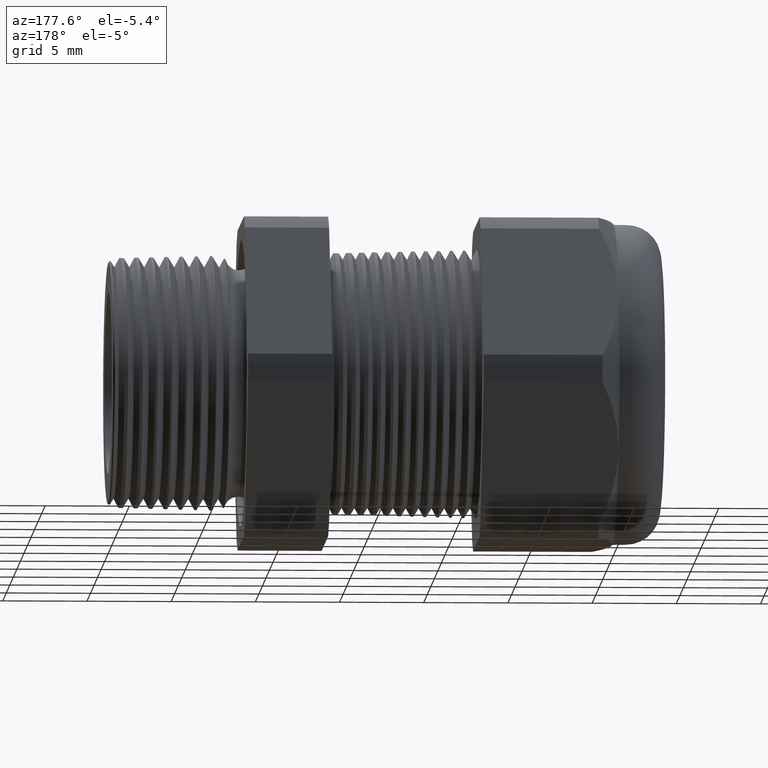
[diagram: clean part render]
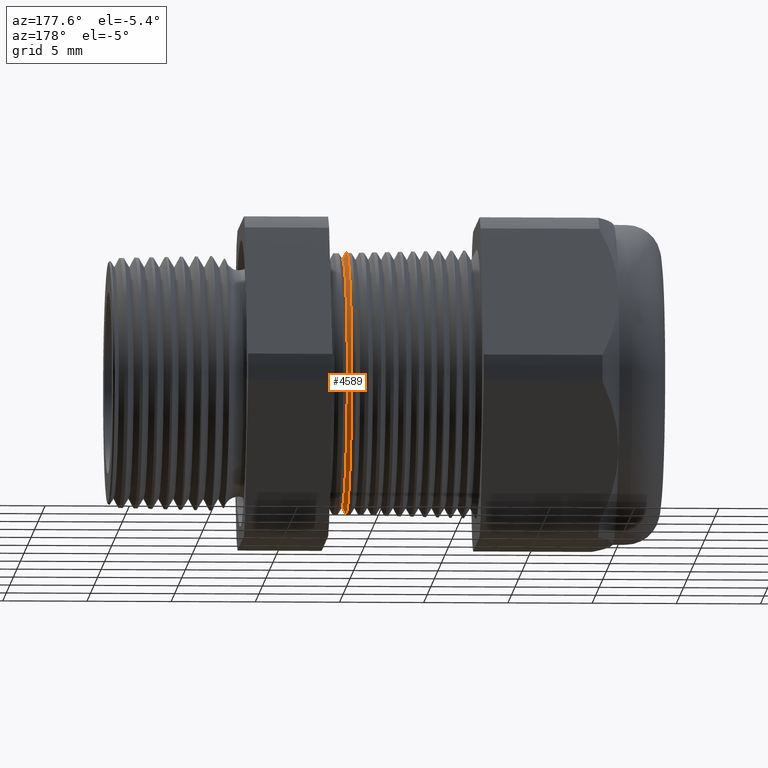
[diagram: same view with one face highlighted and labeled with its STEP entity id]
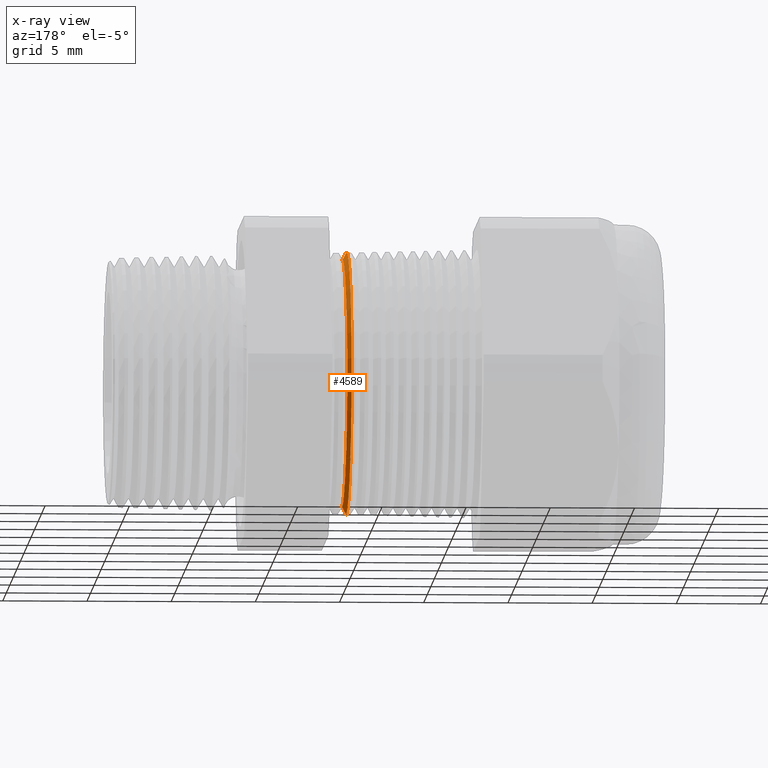
[diagram: x-ray of the same camera — body ghosted, the highlighted face saturated]
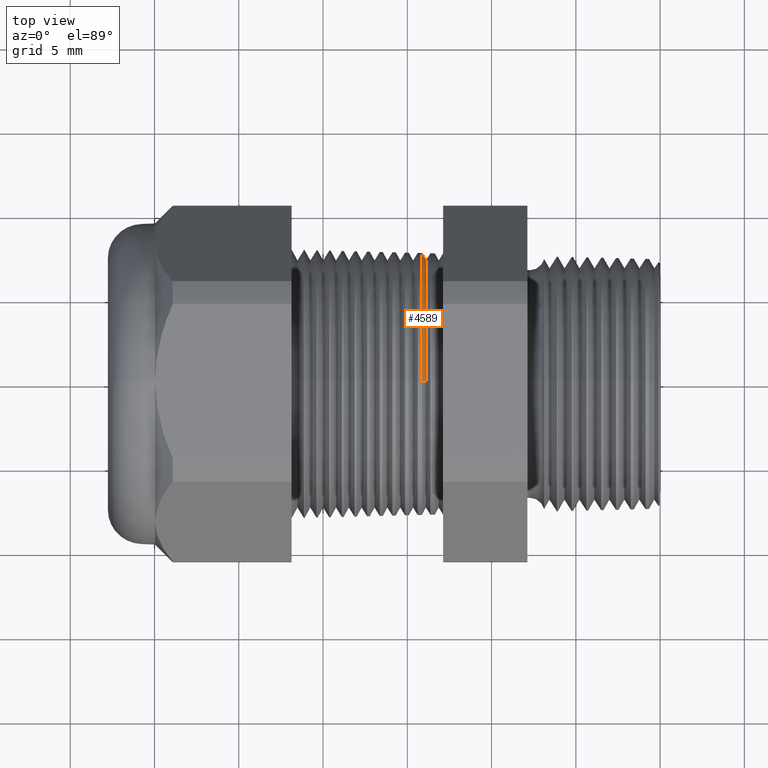
[diagram: same view with one face highlighted and labeled with its STEP entity id]
A machine part, auxiliary view. The second image highlights one B-rep face of the part: STEP entity #4589.
The next image is the same camera in x-ray: the body ghosted, the highlighted face saturated — about 0% of this face is hidden behind the body in this view.
A second angle (top view) of the same face is appended — the face is thin or edge-on in the first view.
In plain terms, the highlighted conical surface has half-angle 61.5 deg.
Its self-contained STEP definition (entity closure, byte-faithful):
#298 = DIRECTION ( 'NONE',  ( 0.0000000000000000000, 0.0000000000000000000, 1.000000000000000000 ) ) ;
#299 = DIRECTION ( 'NONE',  ( 1.000000000000000000, 0.0000000000000000000, 0.0000000000000000000 ) ) ;
#300 = CARTESIAN_POINT ( 'NONE',  ( -0.5565392847553243300, 0.0000000000000000000, 0.0000000000000000000 ) ) ;
#301 = AXIS2_PLACEMENT_3D ( 'NONE', #300, #299, #298 ) ;
#302 = CIRCLE ( 'NONE', #301, 0.3070309207918063800 ) ;
#303 = CARTESIAN_POINT ( 'NONE',  ( -0.5565392847553243300, 3.761605027029299400E-017, -0.3070309207918063800 ) ) ;
#331 = CARTESIAN_POINT ( 'NONE',  ( -0.5565392847553243300, 0.0000000000000000000, 0.3070309207918063800 ) ) ;
#342 = DIRECTION ( 'NONE',  ( -0.4771587602596191200, 0.0000000000000000000, 0.8788171126619595000 ) ) ;
#343 = VECTOR ( 'NONE', #342, 39.37007874015748100 ) ;
#345 = CARTESIAN_POINT ( 'NONE',  ( -0.5608661417322833300, 0.0000000000000000000, 0.3150000000000000000 ) ) ;
#346 = DIRECTION ( 'NONE',  ( 0.0000000000000000000, 0.0000000000000000000, 1.000000000000000000 ) ) ;
#347 = DIRECTION ( 'NONE',  ( -1.000000000000000000, 0.0000000000000000000, 0.0000000000000000000 ) ) ;
#348 = CARTESIAN_POINT ( 'NONE',  ( -0.5608661417322833300, 0.0000000000000000000, 0.0000000000000000000 ) ) ;
#349 = AXIS2_PLACEMENT_3D ( 'NONE', #348, #347, #346 ) ;
#350 = LINE ( 'NONE', #345, #343 ) ;
#352 = CONICAL_SURFACE ( 'NONE', #349, 0.3150000000000000000, 1.073377489976500500 ) ;
#353 = FACE_OUTER_BOUND ( 'NONE', #4576, .T. ) ;
#360 = DIRECTION ( 'NONE',  ( -0.4771587602596191200, 1.076240564057387800E-016, -0.8788171126619595000 ) ) ;
#361 = VECTOR ( 'NONE', #360, 39.37007874015748100 ) ;
#362 = CARTESIAN_POINT ( 'NONE',  ( -0.5608661417322833300, 3.857637417314162700E-017, -0.3150000000000000000 ) ) ;
#363 = LINE ( 'NONE', #362, #361 ) ;
#3348 = CARTESIAN_POINT ( 'NONE',  ( -0.5470917547981792900, 3.653498935748999400E-017, -0.2896307351718082600 ) ) ;
#3349 = DIRECTION ( 'NONE',  ( 0.0000000000000000000, 0.0000000000000000000, -1.000000000000000000 ) ) ;
#3350 = DIRECTION ( 'NONE',  ( 1.000000000000000000, 0.0000000000000000000, 0.0000000000000000000 ) ) ;
#3351 = CARTESIAN_POINT ( 'NONE',  ( -0.5470917547981792900, 0.0000000000000000000, 0.0000000000000000000 ) ) ;
#3352 = AXIS2_PLACEMENT_3D ( 'NONE', #3351, #3350, #3349 ) ;
#3357 = CIRCLE ( 'NONE', #3352, 0.2896307351718082600 ) ;
#3410 = CARTESIAN_POINT ( 'NONE',  ( -0.5470917547981792900, 0.0000000000000000000, 0.2896307351718082600 ) ) ;
#4514 = EDGE_CURVE ( 'NONE', #4515, #4516, #3357, .T. ) ;
#4515 = VERTEX_POINT ( 'NONE', #3348 ) ;
#4516 = VERTEX_POINT ( 'NONE', #3410 ) ;
#4576 = EDGE_LOOP ( 'NONE', ( #4637, #4584, #4595, #4590 ) ) ;
#4581 = VERTEX_POINT ( 'NONE', #303 ) ;
#4582 = EDGE_CURVE ( 'NONE', #4581, #4596, #302, .T. ) ;
#4584 = ORIENTED_EDGE ( 'NONE', *, *, #4585, .T. ) ;
#4585 = EDGE_CURVE ( 'NONE', #4515, #4581, #363, .T. ) ;
#4589 = ADVANCED_FACE ( 'NONE', ( #353 ), #352, .T. ) ;
#4590 = ORIENTED_EDGE ( 'NONE', *, *, #4591, .F. ) ;
#4591 = EDGE_CURVE ( 'NONE', #4516, #4596, #350, .T. ) ;
#4595 = ORIENTED_EDGE ( 'NONE', *, *, #4582, .T. ) ;
#4596 = VERTEX_POINT ( 'NONE', #331 ) ;
#4637 = ORIENTED_EDGE ( 'NONE', *, *, #4514, .F. ) ;